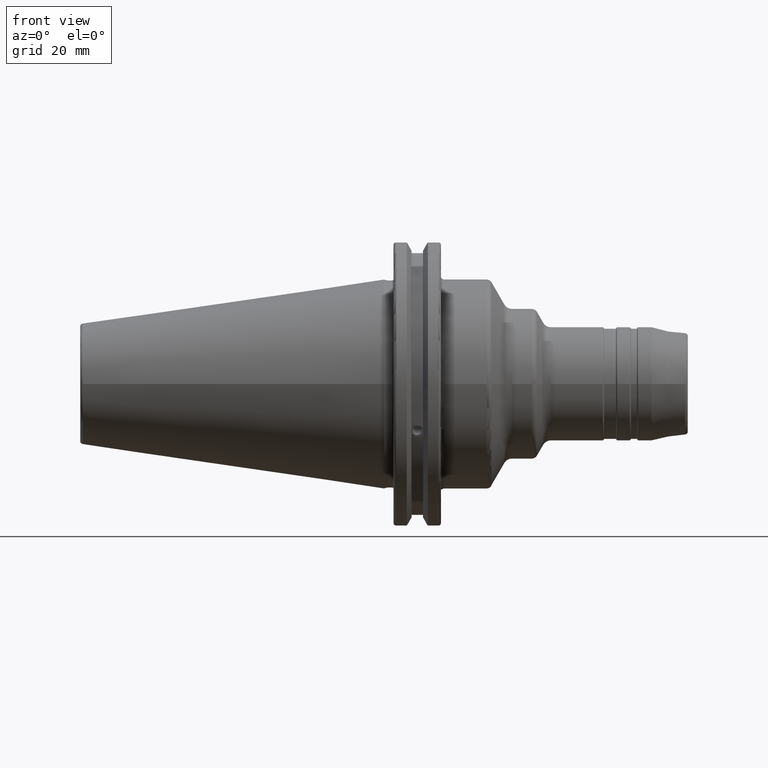
[diagram: clean part render]
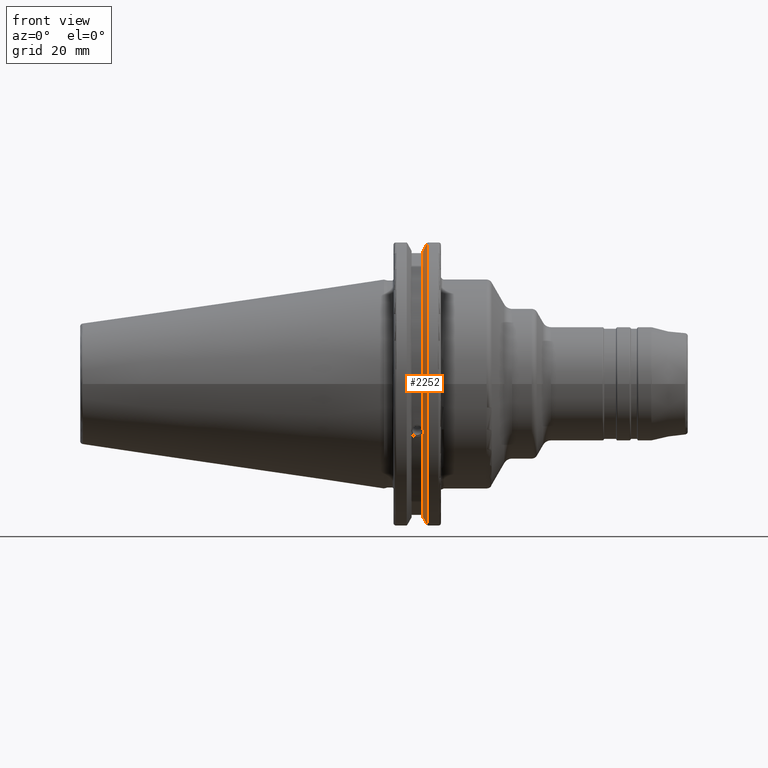
[diagram: same view with one face highlighted and labeled with its STEP entity id]
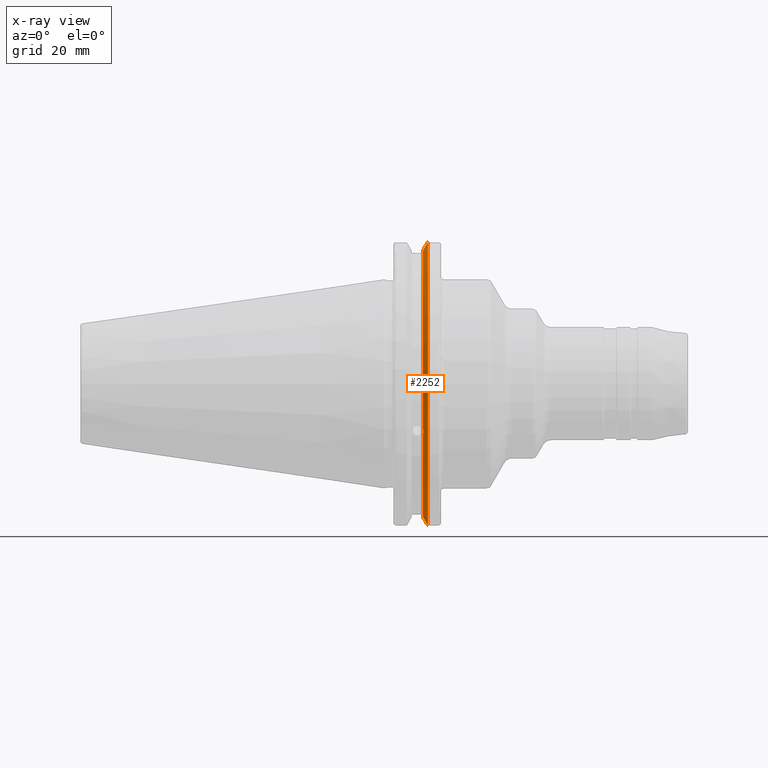
[diagram: x-ray of the same camera — body ghosted, the highlighted face saturated]
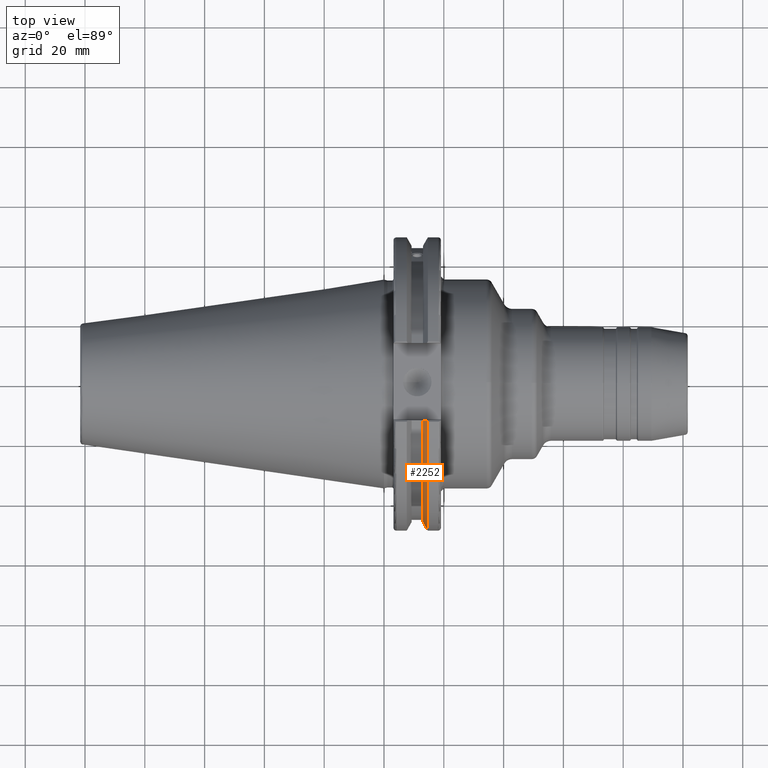
[diagram: same view with one face highlighted and labeled with its STEP entity id]
A machine part, front view. The second image highlights one B-rep face of the part: STEP entity #2252.
The next image is the same camera in x-ray: the body ghosted, the highlighted face saturated — about 0% of this face is hidden behind the body in this view.
A second angle (top view) of the same face is appended — the face is thin or edge-on in the first view.
In plain terms, the highlighted conical surface has half-angle 60 deg.
Its self-contained STEP definition (entity closure, byte-faithful):
#15=(
BOUNDED_CURVE()
B_SPLINE_CURVE(2,(#3960,#3961,#3962),.UNSPECIFIED.,.F.,.F.)
B_SPLINE_CURVE_WITH_KNOTS((3,3),(0.,0.275823910673374),.UNSPECIFIED.)
CURVE()
GEOMETRIC_REPRESENTATION_ITEM()
RATIONAL_B_SPLINE_CURVE((1.,1.00038235574978,1.00012873636953))
REPRESENTATION_ITEM('')
);
#16=(
BOUNDED_CURVE()
B_SPLINE_CURVE(2,(#3964,#3965,#3966),.UNSPECIFIED.,.F.,.F.)
B_SPLINE_CURVE_WITH_KNOTS((3,3),(0.,0.0648240472896156),.UNSPECIFIED.)
CURVE()
GEOMETRIC_REPRESENTATION_ITEM()
RATIONAL_B_SPLINE_CURVE((1.,1.00011477674884,1.00019140646027))
REPRESENTATION_ITEM('')
);
#17=(
BOUNDED_CURVE()
B_SPLINE_CURVE(2,(#3970,#3971,#3972),.UNSPECIFIED.,.F.,.F.)
B_SPLINE_CURVE_WITH_KNOTS((3,3),(0.325260944932494,0.3900849922222),
 .UNSPECIFIED.)
CURVE()
GEOMETRIC_REPRESENTATION_ITEM()
RATIONAL_B_SPLINE_CURVE((1.00019140645961,1.00011477674844,1.))
REPRESENTATION_ITEM('')
);
#18=(
BOUNDED_CURVE()
B_SPLINE_CURVE(2,(#3974,#3975,#3976),.UNSPECIFIED.,.F.,.F.)
B_SPLINE_CURVE_WITH_KNOTS((3,3),(0.0558332664531015,0.331657177124503),
 .UNSPECIFIED.)
CURVE()
GEOMETRIC_REPRESENTATION_ITEM()
RATIONAL_B_SPLINE_CURVE((1.00012873636668,1.00038235574129,1.))
REPRESENTATION_ITEM('')
);
#120=B_SPLINE_CURVE_WITH_KNOTS('',3,(#3864,#3865,#3866,#3867,#3868,#3869,
#3870,#3871),.UNSPECIFIED.,.F.,.F.,(4,2,2,4),(0.42671286835872,0.441644498666905,
0.480313313223129,0.518982127779353),.UNSPECIFIED.);
#124=B_SPLINE_CURVE_WITH_KNOTS('',3,(#3926,#3927,#3928,#3929,#3930,#3931,
#3932,#3933),.UNSPECIFIED.,.F.,.F.,(4,2,2,4),(0.518982127779353,0.557650942335576,
0.5963197568918,0.611251387199985),.UNSPECIFIED.);
#160=CONICAL_SURFACE('',#2515,47.8172386482472,1.0471975511966);
#217=FACE_OUTER_BOUND('',#338,.T.);
#338=EDGE_LOOP('',(#1785,#1786,#1787,#1788,#1789,#1790,#1791,#1792,#1793));
#757=CIRCLE('',#2516,46.4219772964944);
#758=CIRCLE('',#2517,49.2125);
#759=CIRCLE('',#2518,46.4219772964944);
#943=VERTEX_POINT('',#3861);
#944=VERTEX_POINT('',#3863);
#951=VERTEX_POINT('',#3924);
#960=VERTEX_POINT('',#3957);
#961=VERTEX_POINT('',#3959);
#962=VERTEX_POINT('',#3963);
#963=VERTEX_POINT('',#3967);
#964=VERTEX_POINT('',#3969);
#965=VERTEX_POINT('',#3973);
#1243=EDGE_CURVE('',#944,#943,#120,.T.);
#1251=EDGE_CURVE('',#943,#951,#124,.T.);
#1262=EDGE_CURVE('',#951,#960,#757,.T.);
#1263=EDGE_CURVE('',#960,#961,#15,.T.);
#1264=EDGE_CURVE('',#962,#961,#16,.T.);
#1265=EDGE_CURVE('',#963,#962,#758,.T.);
#1266=EDGE_CURVE('',#964,#963,#17,.T.);
#1267=EDGE_CURVE('',#964,#965,#18,.T.);
#1268=EDGE_CURVE('',#965,#944,#759,.T.);
#1785=ORIENTED_EDGE('',*,*,#1243,.T.);
#1786=ORIENTED_EDGE('',*,*,#1251,.T.);
#1787=ORIENTED_EDGE('',*,*,#1262,.T.);
#1788=ORIENTED_EDGE('',*,*,#1263,.T.);
#1789=ORIENTED_EDGE('',*,*,#1264,.F.);
#1790=ORIENTED_EDGE('',*,*,#1265,.F.);
#1791=ORIENTED_EDGE('',*,*,#1266,.F.);
#1792=ORIENTED_EDGE('',*,*,#1267,.T.);
#1793=ORIENTED_EDGE('',*,*,#1268,.T.);
#2252=ADVANCED_FACE('',(#217),#160,.T.);
#2515=AXIS2_PLACEMENT_3D('',#3956,#3037,#3038);
#2516=AXIS2_PLACEMENT_3D('',#3958,#3039,#3040);
#2517=AXIS2_PLACEMENT_3D('',#3968,#3041,#3042);
#2518=AXIS2_PLACEMENT_3D('',#3977,#3043,#3044);
#3037=DIRECTION('center_axis',(1.,0.,0.));
#3038=DIRECTION('ref_axis',(0.,-1.,-1.22464679914735E-16));
#3039=DIRECTION('center_axis',(1.,0.,0.));
#3040=DIRECTION('ref_axis',(0.,0.,-1.));
#3041=DIRECTION('center_axis',(1.,0.,0.));
#3042=DIRECTION('ref_axis',(0.,0.,-1.));
#3043=DIRECTION('center_axis',(1.,0.,0.));
#3044=DIRECTION('ref_axis',(0.,0.,-1.));
#3861=CARTESIAN_POINT('',(13.2341,-43.923494649906,-15.9868446375166));
#3863=CARTESIAN_POINT('',(13.0491,-43.9096390749305,-15.0646464421033));
#3864=CARTESIAN_POINT('Ctrl Pts',(13.0491,-43.9096390749305,-15.0646464421033));
#3865=CARTESIAN_POINT('Ctrl Pts',(13.0660815609661,-43.9250360001461,-15.1104047527575));
#3866=CARTESIAN_POINT('Ctrl Pts',(13.0821132459668,-43.9385582852181,-15.1564111356409));
#3867=CARTESIAN_POINT('Ctrl Pts',(13.1358132615496,-43.9797830409459,-15.3217566390708));
#3868=CARTESIAN_POINT('Ctrl Pts',(13.1719838933644,-43.9989016655819,-15.4570249042868));
#3869=CARTESIAN_POINT('Ctrl Pts',(13.2212913174802,-43.9931221605126,-15.7289849146254));
#3870=CARTESIAN_POINT('Ctrl Pts',(13.2341,-43.9675796948952,-15.8657219718732));
#3871=CARTESIAN_POINT('Ctrl Pts',(13.2341,-43.923494649906,-15.9868446375166));
#3924=CARTESIAN_POINT('',(13.0491,-43.3201030900029,-16.6843832486479));
#3926=CARTESIAN_POINT('Ctrl Pts',(13.2341,-43.923494649906,-15.9868446375166));
#3927=CARTESIAN_POINT('Ctrl Pts',(13.2341,-43.8794096049169,-16.10796730316));
#3928=CARTESIAN_POINT('Ctrl Pts',(13.2212913174802,-43.8110833825827,-16.2291323464527));
#3929=CARTESIAN_POINT('Ctrl Pts',(13.1719838933644,-43.6406982153492,-16.441180795372));
#3930=CARTESIAN_POINT('Ctrl Pts',(13.1358132615496,-43.5391037343221,-16.5325130832406));
#3931=CARTESIAN_POINT('Ctrl Pts',(13.0821132459668,-43.4012416983557,-16.6326763251437));
#3932=CARTESIAN_POINT('Ctrl Pts',(13.0660815609661,-43.3613106941341,-16.6592273018006));
#3933=CARTESIAN_POINT('Ctrl Pts',(13.0491,-43.3201030900029,-16.6843832486479));
#3956=CARTESIAN_POINT('Origin',(13.8546545170244,0.,0.));
#3957=CARTESIAN_POINT('',(13.0491,-12.95,-44.5791147973604));
#3958=CARTESIAN_POINT('Origin',(13.0491,0.,0.));
#3959=CARTESIAN_POINT('',(14.3818103943757,-12.95,-46.9780755322917));
#3960=CARTESIAN_POINT('Ctrl Pts',(13.0491,-12.95,-44.5791147973604));
#3961=CARTESIAN_POINT('Ctrl Pts',(13.697995509466,-12.95,-45.749496680259));
#3962=CARTESIAN_POINT('Ctrl Pts',(14.3818103943757,-12.95,-46.9780755322917));
#3963=CARTESIAN_POINT('',(14.6602090340487,-13.4317035994433,-47.3440544806494));
#3964=CARTESIAN_POINT('Ctrl Pts',(14.6602090340487,-13.4317035994433,-47.3440544806494));
#3965=CARTESIAN_POINT('Ctrl Pts',(14.5199310333617,-13.1896660169964,-47.1601640966263));
#3966=CARTESIAN_POINT('Ctrl Pts',(14.3818103943757,-12.95,-46.9780755322917));
#3967=CARTESIAN_POINT('',(14.6602090340487,-13.4317035994433,47.3440544806494));
#3968=CARTESIAN_POINT('Origin',(14.6602090340487,0.,0.));
#3969=CARTESIAN_POINT('',(14.3818103943757,-12.95,46.9780755322918));
#3970=CARTESIAN_POINT('Ctrl Pts',(14.3818103943757,-12.95,46.9780755322918));
#3971=CARTESIAN_POINT('Ctrl Pts',(14.5199310333617,-13.1896660169966,47.1601640966264));
#3972=CARTESIAN_POINT('Ctrl Pts',(14.6602090340487,-13.4317035994433,47.3440544806494));
#3973=CARTESIAN_POINT('',(13.0491,-12.95,44.5791147973604));
#3974=CARTESIAN_POINT('Ctrl Pts',(14.3818103943757,-12.95,46.9780755322918));
#3975=CARTESIAN_POINT('Ctrl Pts',(13.6979955094846,-12.95,45.7494966802924));
#3976=CARTESIAN_POINT('Ctrl Pts',(13.0491,-12.95,44.5791147973604));
#3977=CARTESIAN_POINT('Origin',(13.0491,0.,0.));